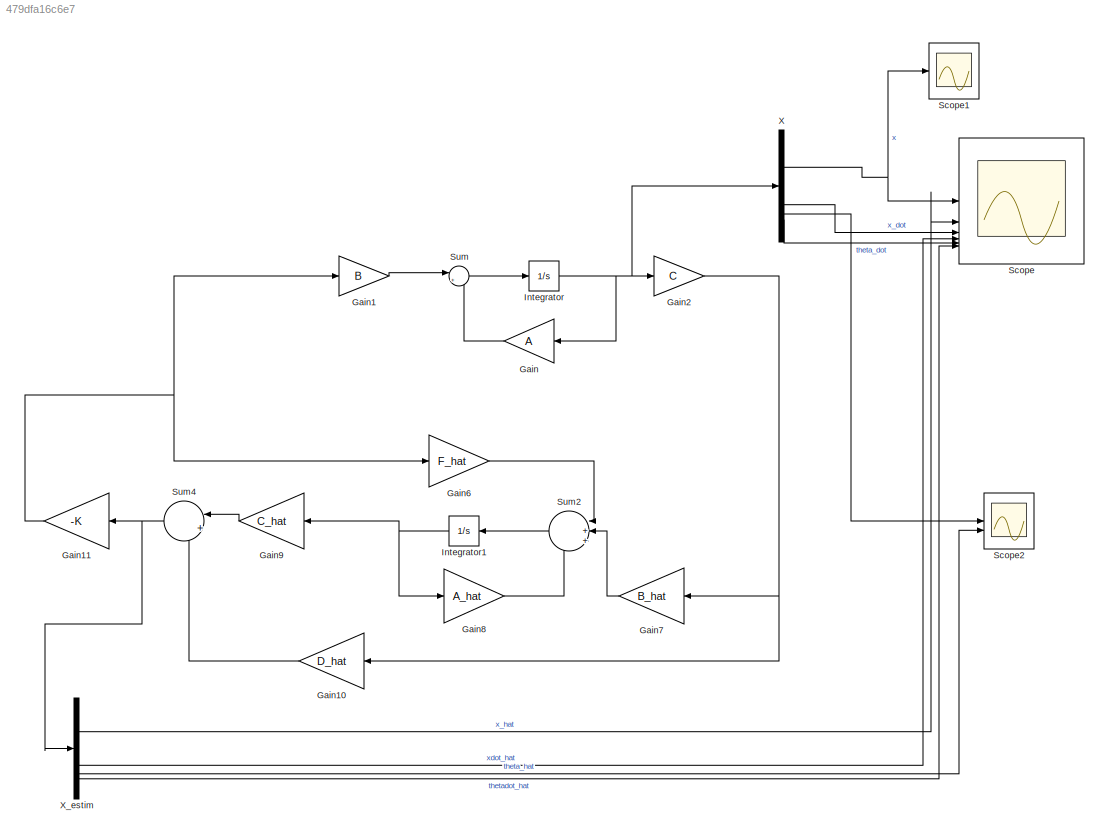
MODEL slx_479dfa16c6e7
KIND model
CONFIG AbsTol = auto
CONFIG EnableMultiTasking = off
CONFIG FixedStep = auto
CONFIG MaxStep = auto
CONFIG MinStep = auto
CONFIG RelTol = 1e-3
CONFIG SampleTimeConstraint = Unconstrained
CONFIG SolverName = ode45
CONFIG StartTime = 0.0
CONFIG StopTime = 400
BLOCK [Gain] Gain
  Gain = A
  Multiplication = Matrix(K*u)
BLOCK [Gain] Gain1
  Gain = B
  Multiplication = Matrix(K*u)
BLOCK [Gain] Gain10
  Gain = D_hat
  Multiplication = Matrix(K*u)
BLOCK [Gain] Gain11
  Gain = -K
  Multiplication = Matrix(K*u)
BLOCK [Gain] Gain2
  Gain = C
  Multiplication = Matrix(K*u)
BLOCK [Gain] Gain6
  Gain = F_hat
  Multiplication = Matrix(K*u)
BLOCK [Gain] Gain7
  Gain = B_hat
  Multiplication = Matrix(K*u)
BLOCK [Gain] Gain8
  Gain = A_hat
  Multiplication = Matrix(K*u)
BLOCK [Gain] Gain9
  Gain = C_hat
  Multiplication = Matrix(K*u)
BLOCK [Integrator] Integrator
  InitialCondition = x0
BLOCK [Integrator] Integrator1
  InitialCondition = x0_omin
BLOCK [Scope] Scope
  ActiveDisplayYMaximum = 0.055584167999339719
  ActiveDisplayYMinimum = -0.039744898058584305
  DisplayFullPath = on
  Floating = off
  FrameBasedProcessingString = Columns as channels (frame based)
  GraphicalSettings = {"Style":{"BackgroundColor":[0.12941176470588237,0.12941176470588237,0.12941176470588237],"AxesColor":[0.07058823529411765,0.07058823529411765,0.07058823529411765],"LabelsColor":[0.8509803921568627,0.8509803921568627,0.8509803921568627],"PreserveColors":false,"Visible":[true,true,true,true,true,true],"LineStyle":["-","-","-","-","-","-"],"LineWidth":[1.5,1.5,1.5,1.5,1.5,1.5],"BarWidth":[0.9,0.9,0....<+4165ch>
  LayoutDimensionsString = [2, 3]
  MultipleDisplayCache = [{"MaxYLimMag":0.055584167999339719,"MaxYLimReal":0.055584167999339719,"MinYLimMag":0,"MinYLimReal":-0.039744898058584305,"PlotAsMagnitudePhase":false,"ShowGrid":true,"ShowLegend":false,"Title":"%<SignalLabel>","YLabel":""},{"MaxYLimMag":0.34797507466122551,"MaxYLimReal":0.27623179665517361,"MinYLimMag":0,"MinYLimReal":-0.34797507466122551,"PlotAsMagnitudePhase":false,"ShowGrid":true,"ShowLegend":...<+925ch>
  NumInputPorts = 6
  SampleTime = 1e-4
  ScopeFrameLocation = window
  WasSavedAsWebScope = on
  WindowPosition = [135.000000,79.000000,1337.000000,634.000000,]
BLOCK [Scope] Scope1
  ActiveDisplayYMaximum = 0.055584167999339719
  ActiveDisplayYMinimum = -0.039744898058584305
  DataLoggingVariableName = ScopeData1
  DisplayFullPath = on
  Floating = off
  FrameBasedProcessingString = Columns as channels (frame based)
  GraphicalSettings = {"Style":{"BackgroundColor":[0.12941176470588237,0.12941176470588237,0.12941176470588237],"AxesColor":[0.07058823529411765,0.07058823529411765,0.07058823529411765],"LabelsColor":[0.8509803921568627,0.8509803921568627,0.8509803921568627],"PreserveColors":false,"Visible":[true],"LineStyle":["-"],"LineWidth":[1.5],"BarWidth":[0.9],"LineColor":["auto"],"LineFaceAlpha":[1],"LineEdgeAlpha":[1],"Marker":...<+1995ch>
  LayoutDimensionsString = [1,1]
  MultipleDisplayCache = [{"MaxYLimMag":0.055584167999339719,"MaxYLimReal":0.055584167999339719,"MinYLimMag":0,"MinYLimReal":-0.039744898058584305,"PlotAsMagnitudePhase":false,"ShowGrid":true,"ShowLegend":false,"Title":"%<SignalLabel>","YLabel":""}]
  NumInputPorts = 1
  SampleTime = 1e-4
  ScopeFrameLocation = window
  WasSavedAsWebScope = on
  WindowPosition = [85.000000,66.000000,1147.000000,593.000000,]
BLOCK [Scope] Scope2
  ActiveDisplayYMaximum = 0.020859803894727538
  ActiveDisplayYMinimum = -0.041102850477065939
  DataLoggingVariableName = ScopeData2
  DisplayFullPath = on
  Floating = off
  FrameBasedProcessingString = Columns as channels (frame based)
  GraphicalSettings = {"Style":{"BackgroundColor":[0.12941176470588237,0.12941176470588237,0.12941176470588237],"AxesColor":[0.07058823529411765,0.07058823529411765,0.07058823529411765],"LabelsColor":[0.8509803921568627,0.8509803921568627,0.8509803921568627],"PreserveColors":false,"Visible":[true,true],"LineStyle":["-","-"],"LineWidth":[1.5,1.5],"BarWidth":[0.9,0.9],"LineColor":["auto","auto"],"LineFaceAlpha":[1,1],"Li...<+2440ch>
  LayoutDimensionsString = [2,1]
  MultipleDisplayCache = [{"MaxYLimMag":0.041102850477065939,"MaxYLimReal":0.020859803894727538,"MinYLimMag":0,"MinYLimReal":-0.041102850477065939,"PlotAsMagnitudePhase":false,"ShowGrid":true,"ShowLegend":false,"Title":"%<SignalLabel>","YLabel":""},{"MaxYLimMag":0.051005588741841947,"MaxYLimReal":0.034330510001461353,"MinYLimMag":0,"MinYLimReal":-0.051005588741841947,"PlotAsMagnitudePhase":false,"ShowGrid":true,"ShowLegen...<+47ch>
  NumInputPorts = 2
  SampleTime = 1e-4
  ScopeFrameLocation = window
  WasSavedAsWebScope = on
  WindowPosition = [387.000000,266.000000,1147.000000,696.000000,]
BLOCK [Sum] Sum
  Inputs = |++
BLOCK [Sum] Sum2
  Inputs = |+++
BLOCK [Sum] Sum4
  Inputs = |++
BLOCK [Demux] X
BLOCK [Demux] X_estim
LINE Gain10:1 -> Sum4:2
NET Gain11:1 -> Gain1:1, Gain6:1
LINE Gain1:1 -> Sum:1
NET Gain2:1 -> Gain10:1, Gain7:1
LINE Gain6:1 -> Sum2:1
LINE Gain7:1 -> Sum2:2
LINE Gain8:1 -> Sum2:3
LINE Gain9:1 -> Sum4:1
LINE Gain:1 -> Sum:2
NET Integrator1:1 -> Gain8:1, Gain9:1
NET Integrator:1 -> Gain2:1, Gain:1, X:1
LINE Sum2:1 -> Integrator1:1
NET Sum4:1 -> Gain11:1, X_estim:1
LINE Sum:1 -> Integrator:1
NET X:1 -> Scope1:1, Scope:1
LINE X:2 -> Scope:3
LINE X:3 -> Scope2:1
LINE X:4 -> Scope:5
LINE X_estim:1 -> Scope:2
LINE X_estim:2 -> Scope:4
LINE X_estim:3 -> Scope2:2
LINE X_estim:4 -> Scope:6
note: NET lines group one-source signal fan-out (src -> all destinations, sorted); 1:1 wires keep LINE
